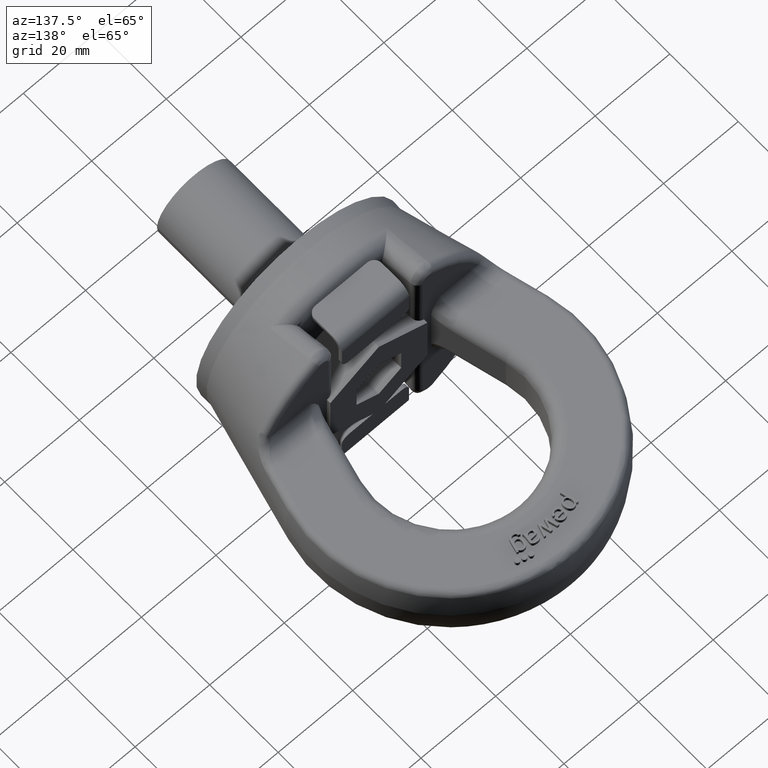
[diagram: clean part render]
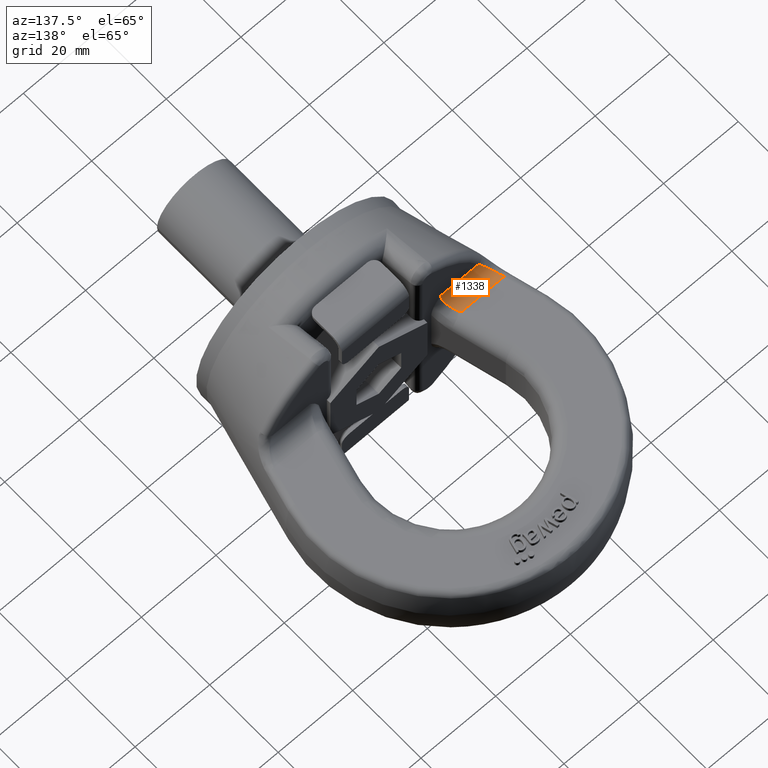
[diagram: same view with one face highlighted and labeled with its STEP entity id]
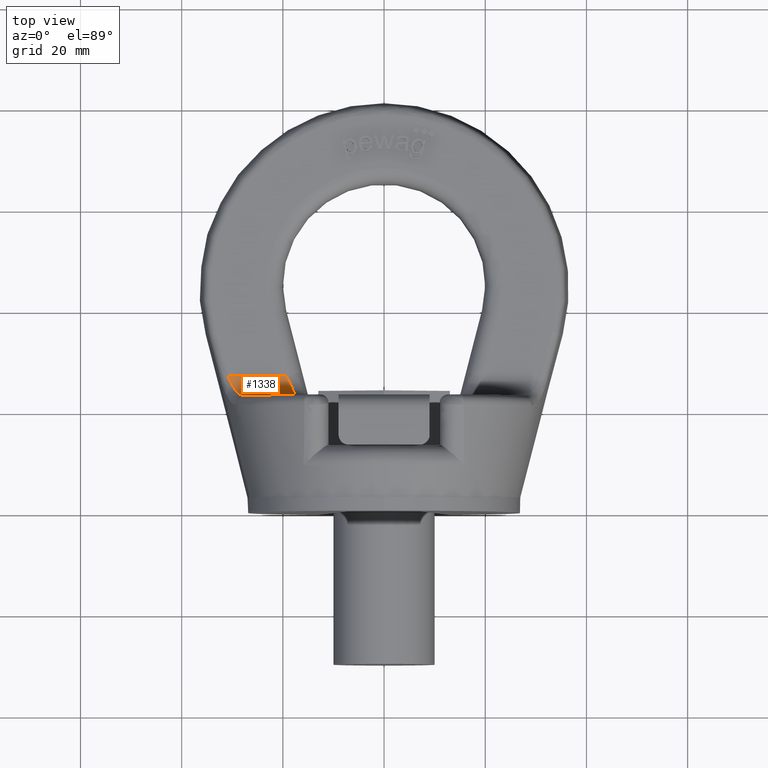
[diagram: same view with one face highlighted and labeled with its STEP entity id]
A machine part, auxiliary view. The second image highlights one B-rep face of the part: STEP entity #1338.
A second angle (top view) of the same face is appended — the face is thin or edge-on in the first view.
In plain terms, the highlighted cylindrical surface (edge-blend (fillet) strip) has radius 4 mm, axis along (-1, 0, 0).
Its self-contained STEP definition (entity closure, byte-faithful):
#1051=ELLIPSE('',#5177,4.40919021747408,4.);
#1060=CYLINDRICAL_SURFACE('',#5178,4.);
#1114=FACE_OUTER_BOUND('',#1854,.T.);
#1338=ADVANCED_FACE('',(#1114),#1060,.F.);
#1854=EDGE_LOOP('',(#2920,#2921,#2922,#2923));
#2104=LINE('',#6417,#2384);
#2132=LINE('',#6624,#2412);
#2384=VECTOR('',#5412,1.);
#2412=VECTOR('',#5446,1.);
#2920=ORIENTED_EDGE('',*,*,#4343,.F.);
#2921=ORIENTED_EDGE('',*,*,#4434,.T.);
#2922=ORIENTED_EDGE('',*,*,#4302,.F.);
#2923=ORIENTED_EDGE('',*,*,#4435,.T.);
#3914=VERTEX_POINT('',#6416);
#3915=VERTEX_POINT('',#6418);
#3955=VERTEX_POINT('',#6623);
#3956=VERTEX_POINT('',#6625);
#4302=EDGE_CURVE('',#3914,#3915,#2104,.T.);
#4343=EDGE_CURVE('',#3955,#3956,#2132,.T.);
#4434=EDGE_CURVE('',#3955,#3915,#1051,.T.);
#4435=EDGE_CURVE('',#3914,#3956,#4904,.T.);
#4904=B_SPLINE_CURVE_WITH_KNOTS('',3,(#7018,#7019,#7020,#7021,#7022,#7023,
#7024,#7025,#7026,#7027,#7028,#7029,#7030,#7031,#7032,#7033),
 .UNSPECIFIED.,.F.,.F.,(4,3,3,3,3,4),(0.,0.213429901587559,0.429077872995629,
0.653447496785717,0.886879115819184,1.),.UNSPECIFIED.);
#5177=AXIS2_PLACEMENT_3D('',#7017,#5589,#5590);
#5178=AXIS2_PLACEMENT_3D('',#7034,#5591,#5592);
#5412=DIRECTION('',(1.,0.,0.));
#5446=DIRECTION('',(-1.,0.,0.));
#5589=DIRECTION('',(0.907196061568763,0.420708100556817,0.));
#5590=DIRECTION('',(-0.420708100556817,0.907196061568763,0.));
#5591=DIRECTION('',(-1.,0.,0.));
#5592=DIRECTION('',(0.,0.,1.));
#6416=CARTESIAN_POINT('',(-30.8746750479564,27.,8.00000000000001));
#6417=CARTESIAN_POINT('',(73.,27.,8.00000000000001));
#6418=CARTESIAN_POINT('',(-19.3201427254803,27.,8.00000000000001));
#6623=CARTESIAN_POINT('',(-17.465160684093,23.,12.));
#6624=CARTESIAN_POINT('',(-14.9851008946631,23.,12.));
#6625=CARTESIAN_POINT('',(-27.5917285107315,23.,12.));
#7017=CARTESIAN_POINT('',(-19.3201427254803,27.,12.));
#7018=CARTESIAN_POINT('',(-30.8746750479564,27.,8.00000000000001));
#7019=CARTESIAN_POINT('',(-30.7009816956053,26.5284668280573,8.00000000000001));
#7020=CARTESIAN_POINT('',(-30.5037721020732,26.0590399968509,8.08541479152712));
#7021=CARTESIAN_POINT('',(-30.2960948742114,25.6291664791271,8.24223264982367));
#7022=CARTESIAN_POINT('',(-30.0860788399746,25.194451838792,8.4008165496379));
#7023=CARTESIAN_POINT('',(-29.8596443591767,24.7890163271301,8.63622502244865));
#7024=CARTESIAN_POINT('',(-29.6255471461635,24.4422432447784,8.92463329322856));
#7025=CARTESIAN_POINT('',(-29.382003263782,24.081476614137,9.22467988102236));
#7026=CARTESIAN_POINT('',(-29.1238729292483,23.7755296780196,9.58902876464585));
#7027=CARTESIAN_POINT('',(-28.8602387428482,23.5446732932154,9.98487783264115));
#7028=CARTESIAN_POINT('',(-28.5860065094746,23.3045365231785,10.3966399621188));
#7029=CARTESIAN_POINT('',(-28.2989751426258,23.1396690781684,10.8518533285953));
#7030=CARTESIAN_POINT('',(-28.0125813013696,23.059199399209,11.3143684482135));
#7031=CARTESIAN_POINT('',(-27.8725472064393,23.0198532365507,11.5405181652718));
#7032=CARTESIAN_POINT('',(-27.7315671690266,23.,11.7703339110129));
#7033=CARTESIAN_POINT('',(-27.5917285107315,23.,12.));
#7034=CARTESIAN_POINT('',(-14.9851008946631,27.,12.));